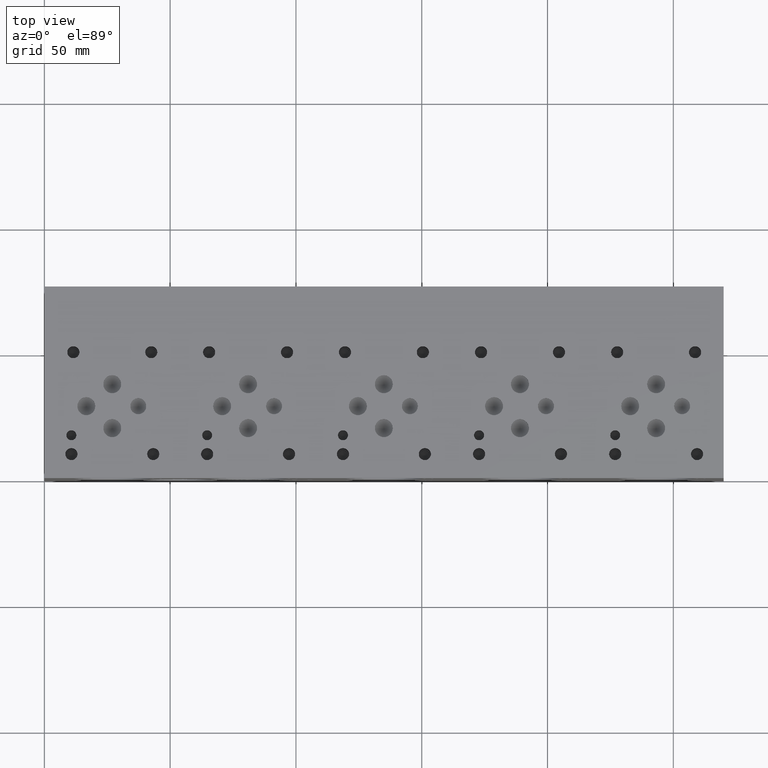
[diagram: clean part render]
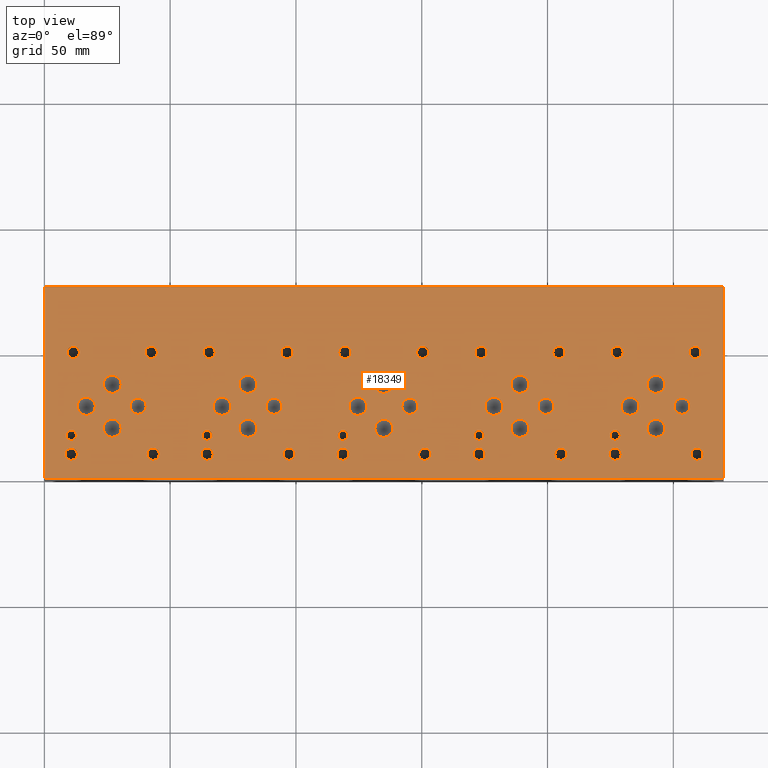
[diagram: same view with one face highlighted and labeled with its STEP entity id]
A machine part, top view. The second image highlights one B-rep face of the part: STEP entity #18349.
In plain terms, the highlighted planar face has unit normal (0, 0, 1).
Its self-contained STEP definition (entity closure, byte-faithful):
#623=CIRCLE('',#19307,1.9812);
#624=CIRCLE('',#19308,1.9812);
#627=CIRCLE('',#19313,1.9812);
#628=CIRCLE('',#19314,1.9812);
#631=CIRCLE('',#19319,1.9812);
#632=CIRCLE('',#19320,1.9812);
#635=CIRCLE('',#19325,1.9812);
#636=CIRCLE('',#19326,1.9812);
#639=CIRCLE('',#19331,3.175);
#640=CIRCLE('',#19332,3.175);
#643=CIRCLE('',#19337,3.175);
#644=CIRCLE('',#19338,3.175);
#647=CIRCLE('',#19343,3.175);
#648=CIRCLE('',#19344,3.175);
#651=CIRCLE('',#19349,3.175);
#652=CIRCLE('',#19350,3.175);
#655=CIRCLE('',#19355,3.175);
#656=CIRCLE('',#19356,3.175);
#659=CIRCLE('',#19361,3.5687);
#660=CIRCLE('',#19362,3.5687);
#663=CIRCLE('',#19367,3.5687);
#664=CIRCLE('',#19368,3.5687);
#667=CIRCLE('',#19373,3.5687);
#668=CIRCLE('',#19374,3.5687);
#671=CIRCLE('',#19379,3.5687);
#672=CIRCLE('',#19380,3.5687);
#675=CIRCLE('',#19385,3.5687);
#676=CIRCLE('',#19386,3.5687);
#679=CIRCLE('',#19391,3.5687);
#680=CIRCLE('',#19392,3.5687);
#683=CIRCLE('',#19397,3.5687);
#684=CIRCLE('',#19398,3.5687);
#687=CIRCLE('',#19403,3.5687);
#688=CIRCLE('',#19404,3.5687);
#691=CIRCLE('',#19409,3.5687);
#692=CIRCLE('',#19410,3.5687);
#695=CIRCLE('',#19415,3.5687);
#696=CIRCLE('',#19416,3.5687);
#699=CIRCLE('',#19421,3.5687);
#700=CIRCLE('',#19422,3.5687);
#703=CIRCLE('',#19427,3.5687);
#704=CIRCLE('',#19428,3.5687);
#707=CIRCLE('',#19433,3.5687);
#708=CIRCLE('',#19434,3.5687);
#711=CIRCLE('',#19439,3.5687);
#712=CIRCLE('',#19440,3.5687);
#715=CIRCLE('',#19445,3.5687);
#716=CIRCLE('',#19446,3.5687);
#719=CIRCLE('',#19451,1.9812);
#720=CIRCLE('',#19452,1.9812);
#726=CIRCLE('',#19461,2.413);
#727=CIRCLE('',#19462,2.413);
#733=CIRCLE('',#19472,2.413);
#734=CIRCLE('',#19473,2.413);
#740=CIRCLE('',#19483,2.413);
#741=CIRCLE('',#19484,2.413);
#747=CIRCLE('',#19494,2.413);
#748=CIRCLE('',#19495,2.413);
#754=CIRCLE('',#19505,2.413);
#755=CIRCLE('',#19506,2.413);
#761=CIRCLE('',#19516,2.413);
#762=CIRCLE('',#19517,2.413);
#768=CIRCLE('',#19527,2.413);
#769=CIRCLE('',#19528,2.413);
#775=CIRCLE('',#19538,2.413);
#776=CIRCLE('',#19539,2.413);
#782=CIRCLE('',#19549,2.413);
#783=CIRCLE('',#19550,2.413);
#789=CIRCLE('',#19560,2.413);
#790=CIRCLE('',#19561,2.413);
#796=CIRCLE('',#19571,2.413);
#797=CIRCLE('',#19572,2.413);
#803=CIRCLE('',#19582,2.413);
#804=CIRCLE('',#19583,2.413);
#810=CIRCLE('',#19593,2.413);
#811=CIRCLE('',#19594,2.413);
#817=CIRCLE('',#19604,2.413);
#818=CIRCLE('',#19605,2.413);
#824=CIRCLE('',#19615,2.413);
#825=CIRCLE('',#19616,2.413);
#831=CIRCLE('',#19626,2.413);
#832=CIRCLE('',#19627,2.413);
#838=CIRCLE('',#19637,2.413);
#839=CIRCLE('',#19638,2.413);
#845=CIRCLE('',#19648,2.413);
#846=CIRCLE('',#19649,2.413);
#852=CIRCLE('',#19659,2.413);
#853=CIRCLE('',#19660,2.413);
#859=CIRCLE('',#19670,2.413);
#860=CIRCLE('',#19671,2.413);
#999=FACE_BOUND('',#3762,.T.);
#1000=FACE_BOUND('',#3763,.T.);
#1001=FACE_BOUND('',#3764,.T.);
#1002=FACE_BOUND('',#3765,.T.);
#1003=FACE_BOUND('',#3766,.T.);
#1004=FACE_BOUND('',#3767,.T.);
#1005=FACE_BOUND('',#3768,.T.);
#1006=FACE_BOUND('',#3769,.T.);
#1007=FACE_BOUND('',#3770,.T.);
#1008=FACE_BOUND('',#3771,.T.);
#1009=FACE_BOUND('',#3772,.T.);
#1010=FACE_BOUND('',#3773,.T.);
#1011=FACE_BOUND('',#3774,.T.);
#1012=FACE_BOUND('',#3775,.T.);
#1013=FACE_BOUND('',#3776,.T.);
#1014=FACE_BOUND('',#3777,.T.);
#1015=FACE_BOUND('',#3778,.T.);
#1016=FACE_BOUND('',#3779,.T.);
#1017=FACE_BOUND('',#3780,.T.);
#1018=FACE_BOUND('',#3781,.T.);
#1019=FACE_BOUND('',#3782,.T.);
#1020=FACE_BOUND('',#3783,.T.);
#1021=FACE_BOUND('',#3784,.T.);
#1022=FACE_BOUND('',#3785,.T.);
#1023=FACE_BOUND('',#3786,.T.);
#1024=FACE_BOUND('',#3787,.T.);
#1025=FACE_BOUND('',#3788,.T.);
#1026=FACE_BOUND('',#3789,.T.);
#1027=FACE_BOUND('',#3790,.T.);
#1028=FACE_BOUND('',#3791,.T.);
#1029=FACE_BOUND('',#3792,.T.);
#1030=FACE_BOUND('',#3793,.T.);
#1031=FACE_BOUND('',#3794,.T.);
#1032=FACE_BOUND('',#3795,.T.);
#1033=FACE_BOUND('',#3796,.T.);
#1034=FACE_BOUND('',#3797,.T.);
#1035=FACE_BOUND('',#3798,.T.);
#1036=FACE_BOUND('',#3799,.T.);
#1037=FACE_BOUND('',#3800,.T.);
#1038=FACE_BOUND('',#3801,.T.);
#1039=FACE_BOUND('',#3802,.T.);
#1040=FACE_BOUND('',#3803,.T.);
#1041=FACE_BOUND('',#3804,.T.);
#1042=FACE_BOUND('',#3805,.T.);
#1043=FACE_BOUND('',#3806,.T.);
#2667=FACE_OUTER_BOUND('',#3761,.T.);
#3761=EDGE_LOOP('',(#16227,#16228,#16229,#16230));
#3762=EDGE_LOOP('',(#16231,#16232));
#3763=EDGE_LOOP('',(#16233,#16234));
#3764=EDGE_LOOP('',(#16235,#16236));
#3765=EDGE_LOOP('',(#16237,#16238));
#3766=EDGE_LOOP('',(#16239,#16240));
#3767=EDGE_LOOP('',(#16241,#16242));
#3768=EDGE_LOOP('',(#16243,#16244));
#3769=EDGE_LOOP('',(#16245,#16246));
#3770=EDGE_LOOP('',(#16247,#16248));
#3771=EDGE_LOOP('',(#16249,#16250));
#3772=EDGE_LOOP('',(#16251,#16252));
#3773=EDGE_LOOP('',(#16253,#16254));
#3774=EDGE_LOOP('',(#16255,#16256));
#3775=EDGE_LOOP('',(#16257,#16258));
#3776=EDGE_LOOP('',(#16259,#16260));
#3777=EDGE_LOOP('',(#16261,#16262));
#3778=EDGE_LOOP('',(#16263,#16264));
#3779=EDGE_LOOP('',(#16265,#16266));
#3780=EDGE_LOOP('',(#16267,#16268));
#3781=EDGE_LOOP('',(#16269,#16270));
#3782=EDGE_LOOP('',(#16271,#16272));
#3783=EDGE_LOOP('',(#16273,#16274));
#3784=EDGE_LOOP('',(#16275,#16276));
#3785=EDGE_LOOP('',(#16277,#16278));
#3786=EDGE_LOOP('',(#16279,#16280));
#3787=EDGE_LOOP('',(#16281,#16282));
#3788=EDGE_LOOP('',(#16283,#16284));
#3789=EDGE_LOOP('',(#16285,#16286));
#3790=EDGE_LOOP('',(#16287,#16288));
#3791=EDGE_LOOP('',(#16289,#16290));
#3792=EDGE_LOOP('',(#16291,#16292));
#3793=EDGE_LOOP('',(#16293,#16294));
#3794=EDGE_LOOP('',(#16295,#16296));
#3795=EDGE_LOOP('',(#16297,#16298));
#3796=EDGE_LOOP('',(#16299,#16300));
#3797=EDGE_LOOP('',(#16301,#16302));
#3798=EDGE_LOOP('',(#16303,#16304));
#3799=EDGE_LOOP('',(#16305,#16306));
#3800=EDGE_LOOP('',(#16307,#16308));
#3801=EDGE_LOOP('',(#16309,#16310));
#3802=EDGE_LOOP('',(#16311,#16312));
#3803=EDGE_LOOP('',(#16313,#16314));
#3804=EDGE_LOOP('',(#16315,#16316));
#3805=EDGE_LOOP('',(#16317,#16318));
#3806=EDGE_LOOP('',(#16319,#16320));
#3866=LINE('',#24097,#5396);
#3926=LINE('',#24372,#5456);
#4239=LINE('',#26978,#5769);
#5337=LINE('',#32033,#6867);
#5396=VECTOR('',#19777,10.);
#5456=VECTOR('',#19891,10.);
#5769=VECTOR('',#20374,10.);
#6867=VECTOR('',#23830,10.);
#6918=VERTEX_POINT('',#24094);
#6919=VERTEX_POINT('',#24096);
#6978=VERTEX_POINT('',#24369);
#6979=VERTEX_POINT('',#24371);
#8372=VERTEX_POINT('',#31273);
#8373=VERTEX_POINT('',#31274);
#8377=VERTEX_POINT('',#31286);
#8378=VERTEX_POINT('',#31287);
#8382=VERTEX_POINT('',#31299);
#8383=VERTEX_POINT('',#31300);
#8387=VERTEX_POINT('',#31312);
#8388=VERTEX_POINT('',#31313);
#8392=VERTEX_POINT('',#31325);
#8393=VERTEX_POINT('',#31326);
#8397=VERTEX_POINT('',#31338);
#8398=VERTEX_POINT('',#31339);
#8402=VERTEX_POINT('',#31351);
#8403=VERTEX_POINT('',#31352);
#8407=VERTEX_POINT('',#31364);
#8408=VERTEX_POINT('',#31365);
#8412=VERTEX_POINT('',#31377);
#8413=VERTEX_POINT('',#31378);
#8417=VERTEX_POINT('',#31390);
#8418=VERTEX_POINT('',#31391);
#8422=VERTEX_POINT('',#31403);
#8423=VERTEX_POINT('',#31404);
#8427=VERTEX_POINT('',#31416);
#8428=VERTEX_POINT('',#31417);
#8432=VERTEX_POINT('',#31429);
#8433=VERTEX_POINT('',#31430);
#8437=VERTEX_POINT('',#31442);
#8438=VERTEX_POINT('',#31443);
#8442=VERTEX_POINT('',#31455);
#8443=VERTEX_POINT('',#31456);
#8447=VERTEX_POINT('',#31468);
#8448=VERTEX_POINT('',#31469);
#8452=VERTEX_POINT('',#31481);
#8453=VERTEX_POINT('',#31482);
#8457=VERTEX_POINT('',#31494);
#8458=VERTEX_POINT('',#31495);
#8462=VERTEX_POINT('',#31507);
#8463=VERTEX_POINT('',#31508);
#8467=VERTEX_POINT('',#31520);
#8468=VERTEX_POINT('',#31521);
#8472=VERTEX_POINT('',#31533);
#8473=VERTEX_POINT('',#31534);
#8477=VERTEX_POINT('',#31546);
#8478=VERTEX_POINT('',#31547);
#8482=VERTEX_POINT('',#31559);
#8483=VERTEX_POINT('',#31560);
#8487=VERTEX_POINT('',#31572);
#8488=VERTEX_POINT('',#31573);
#8492=VERTEX_POINT('',#31585);
#8493=VERTEX_POINT('',#31586);
#8500=VERTEX_POINT('',#31605);
#8501=VERTEX_POINT('',#31606);
#8508=VERTEX_POINT('',#31627);
#8509=VERTEX_POINT('',#31628);
#8516=VERTEX_POINT('',#31649);
#8517=VERTEX_POINT('',#31650);
#8524=VERTEX_POINT('',#31671);
#8525=VERTEX_POINT('',#31672);
#8532=VERTEX_POINT('',#31693);
#8533=VERTEX_POINT('',#31694);
#8540=VERTEX_POINT('',#31715);
#8541=VERTEX_POINT('',#31716);
#8548=VERTEX_POINT('',#31737);
#8549=VERTEX_POINT('',#31738);
#8556=VERTEX_POINT('',#31759);
#8557=VERTEX_POINT('',#31760);
#8564=VERTEX_POINT('',#31781);
#8565=VERTEX_POINT('',#31782);
#8572=VERTEX_POINT('',#31803);
#8573=VERTEX_POINT('',#31804);
#8580=VERTEX_POINT('',#31825);
#8581=VERTEX_POINT('',#31826);
#8588=VERTEX_POINT('',#31847);
#8589=VERTEX_POINT('',#31848);
#8596=VERTEX_POINT('',#31869);
#8597=VERTEX_POINT('',#31870);
#8604=VERTEX_POINT('',#31891);
#8605=VERTEX_POINT('',#31892);
#8612=VERTEX_POINT('',#31913);
#8613=VERTEX_POINT('',#31914);
#8620=VERTEX_POINT('',#31935);
#8621=VERTEX_POINT('',#31936);
#8628=VERTEX_POINT('',#31957);
#8629=VERTEX_POINT('',#31958);
#8636=VERTEX_POINT('',#31979);
#8637=VERTEX_POINT('',#31980);
#8644=VERTEX_POINT('',#32001);
#8645=VERTEX_POINT('',#32002);
#8652=VERTEX_POINT('',#32023);
#8653=VERTEX_POINT('',#32024);
#8728=EDGE_CURVE('',#6919,#6918,#3866,.T.);
#8812=EDGE_CURVE('',#6979,#6978,#3926,.T.);
#9363=EDGE_CURVE('',#6978,#6919,#4239,.T.);
#10862=EDGE_CURVE('',#8372,#8373,#623,.T.);
#10863=EDGE_CURVE('',#8373,#8372,#624,.T.);
#10868=EDGE_CURVE('',#8377,#8378,#627,.T.);
#10869=EDGE_CURVE('',#8378,#8377,#628,.T.);
#10874=EDGE_CURVE('',#8382,#8383,#631,.T.);
#10875=EDGE_CURVE('',#8383,#8382,#632,.T.);
#10880=EDGE_CURVE('',#8387,#8388,#635,.T.);
#10881=EDGE_CURVE('',#8388,#8387,#636,.T.);
#10886=EDGE_CURVE('',#8392,#8393,#639,.T.);
#10887=EDGE_CURVE('',#8393,#8392,#640,.T.);
#10892=EDGE_CURVE('',#8397,#8398,#643,.T.);
#10893=EDGE_CURVE('',#8398,#8397,#644,.T.);
#10898=EDGE_CURVE('',#8402,#8403,#647,.T.);
#10899=EDGE_CURVE('',#8403,#8402,#648,.T.);
#10904=EDGE_CURVE('',#8407,#8408,#651,.T.);
#10905=EDGE_CURVE('',#8408,#8407,#652,.T.);
#10910=EDGE_CURVE('',#8412,#8413,#655,.T.);
#10911=EDGE_CURVE('',#8413,#8412,#656,.T.);
#10916=EDGE_CURVE('',#8417,#8418,#659,.T.);
#10917=EDGE_CURVE('',#8418,#8417,#660,.T.);
#10922=EDGE_CURVE('',#8422,#8423,#663,.T.);
#10923=EDGE_CURVE('',#8423,#8422,#664,.T.);
#10928=EDGE_CURVE('',#8427,#8428,#667,.T.);
#10929=EDGE_CURVE('',#8428,#8427,#668,.T.);
#10934=EDGE_CURVE('',#8432,#8433,#671,.T.);
#10935=EDGE_CURVE('',#8433,#8432,#672,.T.);
#10940=EDGE_CURVE('',#8437,#8438,#675,.T.);
#10941=EDGE_CURVE('',#8438,#8437,#676,.T.);
#10946=EDGE_CURVE('',#8442,#8443,#679,.T.);
#10947=EDGE_CURVE('',#8443,#8442,#680,.T.);
#10952=EDGE_CURVE('',#8447,#8448,#683,.T.);
#10953=EDGE_CURVE('',#8448,#8447,#684,.T.);
#10958=EDGE_CURVE('',#8452,#8453,#687,.T.);
#10959=EDGE_CURVE('',#8453,#8452,#688,.T.);
#10964=EDGE_CURVE('',#8457,#8458,#691,.T.);
#10965=EDGE_CURVE('',#8458,#8457,#692,.T.);
#10970=EDGE_CURVE('',#8462,#8463,#695,.T.);
#10971=EDGE_CURVE('',#8463,#8462,#696,.T.);
#10976=EDGE_CURVE('',#8467,#8468,#699,.T.);
#10977=EDGE_CURVE('',#8468,#8467,#700,.T.);
#10982=EDGE_CURVE('',#8472,#8473,#703,.T.);
#10983=EDGE_CURVE('',#8473,#8472,#704,.T.);
#10988=EDGE_CURVE('',#8477,#8478,#707,.T.);
#10989=EDGE_CURVE('',#8478,#8477,#708,.T.);
#10994=EDGE_CURVE('',#8482,#8483,#711,.T.);
#10995=EDGE_CURVE('',#8483,#8482,#712,.T.);
#11000=EDGE_CURVE('',#8487,#8488,#715,.T.);
#11001=EDGE_CURVE('',#8488,#8487,#716,.T.);
#11006=EDGE_CURVE('',#8492,#8493,#719,.T.);
#11007=EDGE_CURVE('',#8493,#8492,#720,.T.);
#11015=EDGE_CURVE('',#8500,#8501,#726,.T.);
#11016=EDGE_CURVE('',#8501,#8500,#727,.T.);
#11025=EDGE_CURVE('',#8508,#8509,#733,.T.);
#11026=EDGE_CURVE('',#8509,#8508,#734,.T.);
#11035=EDGE_CURVE('',#8516,#8517,#740,.T.);
#11036=EDGE_CURVE('',#8517,#8516,#741,.T.);
#11045=EDGE_CURVE('',#8524,#8525,#747,.T.);
#11046=EDGE_CURVE('',#8525,#8524,#748,.T.);
#11055=EDGE_CURVE('',#8532,#8533,#754,.T.);
#11056=EDGE_CURVE('',#8533,#8532,#755,.T.);
#11065=EDGE_CURVE('',#8540,#8541,#761,.T.);
#11066=EDGE_CURVE('',#8541,#8540,#762,.T.);
#11075=EDGE_CURVE('',#8548,#8549,#768,.T.);
#11076=EDGE_CURVE('',#8549,#8548,#769,.T.);
#11085=EDGE_CURVE('',#8556,#8557,#775,.T.);
#11086=EDGE_CURVE('',#8557,#8556,#776,.T.);
#11095=EDGE_CURVE('',#8564,#8565,#782,.T.);
#11096=EDGE_CURVE('',#8565,#8564,#783,.T.);
#11105=EDGE_CURVE('',#8572,#8573,#789,.T.);
#11106=EDGE_CURVE('',#8573,#8572,#790,.T.);
#11115=EDGE_CURVE('',#8580,#8581,#796,.T.);
#11116=EDGE_CURVE('',#8581,#8580,#797,.T.);
#11125=EDGE_CURVE('',#8588,#8589,#803,.T.);
#11126=EDGE_CURVE('',#8589,#8588,#804,.T.);
#11135=EDGE_CURVE('',#8596,#8597,#810,.T.);
#11136=EDGE_CURVE('',#8597,#8596,#811,.T.);
#11145=EDGE_CURVE('',#8604,#8605,#817,.T.);
#11146=EDGE_CURVE('',#8605,#8604,#818,.T.);
#11155=EDGE_CURVE('',#8612,#8613,#824,.T.);
#11156=EDGE_CURVE('',#8613,#8612,#825,.T.);
#11165=EDGE_CURVE('',#8620,#8621,#831,.T.);
#11166=EDGE_CURVE('',#8621,#8620,#832,.T.);
#11175=EDGE_CURVE('',#8628,#8629,#838,.T.);
#11176=EDGE_CURVE('',#8629,#8628,#839,.T.);
#11185=EDGE_CURVE('',#8636,#8637,#845,.T.);
#11186=EDGE_CURVE('',#8637,#8636,#846,.T.);
#11195=EDGE_CURVE('',#8644,#8645,#852,.T.);
#11196=EDGE_CURVE('',#8645,#8644,#853,.T.);
#11205=EDGE_CURVE('',#8652,#8653,#859,.T.);
#11206=EDGE_CURVE('',#8653,#8652,#860,.T.);
#11210=EDGE_CURVE('',#6918,#6979,#5337,.T.);
#16227=ORIENTED_EDGE('',*,*,#9363,.T.);
#16228=ORIENTED_EDGE('',*,*,#8728,.T.);
#16229=ORIENTED_EDGE('',*,*,#11210,.T.);
#16230=ORIENTED_EDGE('',*,*,#8812,.T.);
#16231=ORIENTED_EDGE('',*,*,#10862,.T.);
#16232=ORIENTED_EDGE('',*,*,#10863,.T.);
#16233=ORIENTED_EDGE('',*,*,#10868,.T.);
#16234=ORIENTED_EDGE('',*,*,#10869,.T.);
#16235=ORIENTED_EDGE('',*,*,#10874,.T.);
#16236=ORIENTED_EDGE('',*,*,#10875,.T.);
#16237=ORIENTED_EDGE('',*,*,#10880,.T.);
#16238=ORIENTED_EDGE('',*,*,#10881,.T.);
#16239=ORIENTED_EDGE('',*,*,#10886,.T.);
#16240=ORIENTED_EDGE('',*,*,#10887,.T.);
#16241=ORIENTED_EDGE('',*,*,#10892,.T.);
#16242=ORIENTED_EDGE('',*,*,#10893,.T.);
#16243=ORIENTED_EDGE('',*,*,#10898,.T.);
#16244=ORIENTED_EDGE('',*,*,#10899,.T.);
#16245=ORIENTED_EDGE('',*,*,#10904,.T.);
#16246=ORIENTED_EDGE('',*,*,#10905,.T.);
#16247=ORIENTED_EDGE('',*,*,#10910,.T.);
#16248=ORIENTED_EDGE('',*,*,#10911,.T.);
#16249=ORIENTED_EDGE('',*,*,#10916,.T.);
#16250=ORIENTED_EDGE('',*,*,#10917,.T.);
#16251=ORIENTED_EDGE('',*,*,#10922,.T.);
#16252=ORIENTED_EDGE('',*,*,#10923,.T.);
#16253=ORIENTED_EDGE('',*,*,#10928,.T.);
#16254=ORIENTED_EDGE('',*,*,#10929,.T.);
#16255=ORIENTED_EDGE('',*,*,#10934,.T.);
#16256=ORIENTED_EDGE('',*,*,#10935,.T.);
#16257=ORIENTED_EDGE('',*,*,#10940,.T.);
#16258=ORIENTED_EDGE('',*,*,#10941,.T.);
#16259=ORIENTED_EDGE('',*,*,#10946,.T.);
#16260=ORIENTED_EDGE('',*,*,#10947,.T.);
#16261=ORIENTED_EDGE('',*,*,#10952,.T.);
#16262=ORIENTED_EDGE('',*,*,#10953,.T.);
#16263=ORIENTED_EDGE('',*,*,#10958,.T.);
#16264=ORIENTED_EDGE('',*,*,#10959,.T.);
#16265=ORIENTED_EDGE('',*,*,#10964,.T.);
#16266=ORIENTED_EDGE('',*,*,#10965,.T.);
#16267=ORIENTED_EDGE('',*,*,#10970,.T.);
#16268=ORIENTED_EDGE('',*,*,#10971,.T.);
#16269=ORIENTED_EDGE('',*,*,#10976,.T.);
#16270=ORIENTED_EDGE('',*,*,#10977,.T.);
#16271=ORIENTED_EDGE('',*,*,#10982,.T.);
#16272=ORIENTED_EDGE('',*,*,#10983,.T.);
#16273=ORIENTED_EDGE('',*,*,#10988,.T.);
#16274=ORIENTED_EDGE('',*,*,#10989,.T.);
#16275=ORIENTED_EDGE('',*,*,#10994,.T.);
#16276=ORIENTED_EDGE('',*,*,#10995,.T.);
#16277=ORIENTED_EDGE('',*,*,#11000,.T.);
#16278=ORIENTED_EDGE('',*,*,#11001,.T.);
#16279=ORIENTED_EDGE('',*,*,#11006,.T.);
#16280=ORIENTED_EDGE('',*,*,#11007,.T.);
#16281=ORIENTED_EDGE('',*,*,#11015,.T.);
#16282=ORIENTED_EDGE('',*,*,#11016,.T.);
#16283=ORIENTED_EDGE('',*,*,#11025,.T.);
#16284=ORIENTED_EDGE('',*,*,#11026,.T.);
#16285=ORIENTED_EDGE('',*,*,#11035,.T.);
#16286=ORIENTED_EDGE('',*,*,#11036,.T.);
#16287=ORIENTED_EDGE('',*,*,#11045,.T.);
#16288=ORIENTED_EDGE('',*,*,#11046,.T.);
#16289=ORIENTED_EDGE('',*,*,#11055,.T.);
#16290=ORIENTED_EDGE('',*,*,#11056,.T.);
#16291=ORIENTED_EDGE('',*,*,#11065,.T.);
#16292=ORIENTED_EDGE('',*,*,#11066,.T.);
#16293=ORIENTED_EDGE('',*,*,#11075,.T.);
#16294=ORIENTED_EDGE('',*,*,#11076,.T.);
#16295=ORIENTED_EDGE('',*,*,#11085,.T.);
#16296=ORIENTED_EDGE('',*,*,#11086,.T.);
#16297=ORIENTED_EDGE('',*,*,#11095,.T.);
#16298=ORIENTED_EDGE('',*,*,#11096,.T.);
#16299=ORIENTED_EDGE('',*,*,#11105,.T.);
#16300=ORIENTED_EDGE('',*,*,#11106,.T.);
#16301=ORIENTED_EDGE('',*,*,#11115,.T.);
#16302=ORIENTED_EDGE('',*,*,#11116,.T.);
#16303=ORIENTED_EDGE('',*,*,#11125,.T.);
#16304=ORIENTED_EDGE('',*,*,#11126,.T.);
#16305=ORIENTED_EDGE('',*,*,#11135,.T.);
#16306=ORIENTED_EDGE('',*,*,#11136,.T.);
#16307=ORIENTED_EDGE('',*,*,#11145,.T.);
#16308=ORIENTED_EDGE('',*,*,#11146,.T.);
#16309=ORIENTED_EDGE('',*,*,#11155,.T.);
#16310=ORIENTED_EDGE('',*,*,#11156,.T.);
#16311=ORIENTED_EDGE('',*,*,#11165,.T.);
#16312=ORIENTED_EDGE('',*,*,#11166,.T.);
#16313=ORIENTED_EDGE('',*,*,#11175,.T.);
#16314=ORIENTED_EDGE('',*,*,#11176,.T.);
#16315=ORIENTED_EDGE('',*,*,#11185,.T.);
#16316=ORIENTED_EDGE('',*,*,#11186,.T.);
#16317=ORIENTED_EDGE('',*,*,#11195,.T.);
#16318=ORIENTED_EDGE('',*,*,#11196,.T.);
#16319=ORIENTED_EDGE('',*,*,#11205,.T.);
#16320=ORIENTED_EDGE('',*,*,#11206,.T.);
#16790=PLANE('',#19677);
#18349=ADVANCED_FACE('',(#2667,#999,#1000,#1001,#1002,#1003,#1004,#1005,
#1006,#1007,#1008,#1009,#1010,#1011,#1012,#1013,#1014,#1015,#1016,#1017,
#1018,#1019,#1020,#1021,#1022,#1023,#1024,#1025,#1026,#1027,#1028,#1029,
#1030,#1031,#1032,#1033,#1034,#1035,#1036,#1037,#1038,#1039,#1040,#1041,
#1042,#1043),#16790,.T.);
#19307=AXIS2_PLACEMENT_3D('',#31275,#22984,#22985);
#19308=AXIS2_PLACEMENT_3D('',#31276,#22986,#22987);
#19313=AXIS2_PLACEMENT_3D('',#31288,#22998,#22999);
#19314=AXIS2_PLACEMENT_3D('',#31289,#23000,#23001);
#19319=AXIS2_PLACEMENT_3D('',#31301,#23012,#23013);
#19320=AXIS2_PLACEMENT_3D('',#31302,#23014,#23015);
#19325=AXIS2_PLACEMENT_3D('',#31314,#23026,#23027);
#19326=AXIS2_PLACEMENT_3D('',#31315,#23028,#23029);
#19331=AXIS2_PLACEMENT_3D('',#31327,#23040,#23041);
#19332=AXIS2_PLACEMENT_3D('',#31328,#23042,#23043);
#19337=AXIS2_PLACEMENT_3D('',#31340,#23054,#23055);
#19338=AXIS2_PLACEMENT_3D('',#31341,#23056,#23057);
#19343=AXIS2_PLACEMENT_3D('',#31353,#23068,#23069);
#19344=AXIS2_PLACEMENT_3D('',#31354,#23070,#23071);
#19349=AXIS2_PLACEMENT_3D('',#31366,#23082,#23083);
#19350=AXIS2_PLACEMENT_3D('',#31367,#23084,#23085);
#19355=AXIS2_PLACEMENT_3D('',#31379,#23096,#23097);
#19356=AXIS2_PLACEMENT_3D('',#31380,#23098,#23099);
#19361=AXIS2_PLACEMENT_3D('',#31392,#23110,#23111);
#19362=AXIS2_PLACEMENT_3D('',#31393,#23112,#23113);
#19367=AXIS2_PLACEMENT_3D('',#31405,#23124,#23125);
#19368=AXIS2_PLACEMENT_3D('',#31406,#23126,#23127);
#19373=AXIS2_PLACEMENT_3D('',#31418,#23138,#23139);
#19374=AXIS2_PLACEMENT_3D('',#31419,#23140,#23141);
#19379=AXIS2_PLACEMENT_3D('',#31431,#23152,#23153);
#19380=AXIS2_PLACEMENT_3D('',#31432,#23154,#23155);
#19385=AXIS2_PLACEMENT_3D('',#31444,#23166,#23167);
#19386=AXIS2_PLACEMENT_3D('',#31445,#23168,#23169);
#19391=AXIS2_PLACEMENT_3D('',#31457,#23180,#23181);
#19392=AXIS2_PLACEMENT_3D('',#31458,#23182,#23183);
#19397=AXIS2_PLACEMENT_3D('',#31470,#23194,#23195);
#19398=AXIS2_PLACEMENT_3D('',#31471,#23196,#23197);
#19403=AXIS2_PLACEMENT_3D('',#31483,#23208,#23209);
#19404=AXIS2_PLACEMENT_3D('',#31484,#23210,#23211);
#19409=AXIS2_PLACEMENT_3D('',#31496,#23222,#23223);
#19410=AXIS2_PLACEMENT_3D('',#31497,#23224,#23225);
#19415=AXIS2_PLACEMENT_3D('',#31509,#23236,#23237);
#19416=AXIS2_PLACEMENT_3D('',#31510,#23238,#23239);
#19421=AXIS2_PLACEMENT_3D('',#31522,#23250,#23251);
#19422=AXIS2_PLACEMENT_3D('',#31523,#23252,#23253);
#19427=AXIS2_PLACEMENT_3D('',#31535,#23264,#23265);
#19428=AXIS2_PLACEMENT_3D('',#31536,#23266,#23267);
#19433=AXIS2_PLACEMENT_3D('',#31548,#23278,#23279);
#19434=AXIS2_PLACEMENT_3D('',#31549,#23280,#23281);
#19439=AXIS2_PLACEMENT_3D('',#31561,#23292,#23293);
#19440=AXIS2_PLACEMENT_3D('',#31562,#23294,#23295);
#19445=AXIS2_PLACEMENT_3D('',#31574,#23306,#23307);
#19446=AXIS2_PLACEMENT_3D('',#31575,#23308,#23309);
#19451=AXIS2_PLACEMENT_3D('',#31587,#23320,#23321);
#19452=AXIS2_PLACEMENT_3D('',#31588,#23322,#23323);
#19461=AXIS2_PLACEMENT_3D('',#31607,#23342,#23343);
#19462=AXIS2_PLACEMENT_3D('',#31608,#23344,#23345);
#19472=AXIS2_PLACEMENT_3D('',#31629,#23367,#23368);
#19473=AXIS2_PLACEMENT_3D('',#31630,#23369,#23370);
#19483=AXIS2_PLACEMENT_3D('',#31651,#23392,#23393);
#19484=AXIS2_PLACEMENT_3D('',#31652,#23394,#23395);
#19494=AXIS2_PLACEMENT_3D('',#31673,#23417,#23418);
#19495=AXIS2_PLACEMENT_3D('',#31674,#23419,#23420);
#19505=AXIS2_PLACEMENT_3D('',#31695,#23442,#23443);
#19506=AXIS2_PLACEMENT_3D('',#31696,#23444,#23445);
#19516=AXIS2_PLACEMENT_3D('',#31717,#23467,#23468);
#19517=AXIS2_PLACEMENT_3D('',#31718,#23469,#23470);
#19527=AXIS2_PLACEMENT_3D('',#31739,#23492,#23493);
#19528=AXIS2_PLACEMENT_3D('',#31740,#23494,#23495);
#19538=AXIS2_PLACEMENT_3D('',#31761,#23517,#23518);
#19539=AXIS2_PLACEMENT_3D('',#31762,#23519,#23520);
#19549=AXIS2_PLACEMENT_3D('',#31783,#23542,#23543);
#19550=AXIS2_PLACEMENT_3D('',#31784,#23544,#23545);
#19560=AXIS2_PLACEMENT_3D('',#31805,#23567,#23568);
#19561=AXIS2_PLACEMENT_3D('',#31806,#23569,#23570);
#19571=AXIS2_PLACEMENT_3D('',#31827,#23592,#23593);
#19572=AXIS2_PLACEMENT_3D('',#31828,#23594,#23595);
#19582=AXIS2_PLACEMENT_3D('',#31849,#23617,#23618);
#19583=AXIS2_PLACEMENT_3D('',#31850,#23619,#23620);
#19593=AXIS2_PLACEMENT_3D('',#31871,#23642,#23643);
#19594=AXIS2_PLACEMENT_3D('',#31872,#23644,#23645);
#19604=AXIS2_PLACEMENT_3D('',#31893,#23667,#23668);
#19605=AXIS2_PLACEMENT_3D('',#31894,#23669,#23670);
#19615=AXIS2_PLACEMENT_3D('',#31915,#23692,#23693);
#19616=AXIS2_PLACEMENT_3D('',#31916,#23694,#23695);
#19626=AXIS2_PLACEMENT_3D('',#31937,#23717,#23718);
#19627=AXIS2_PLACEMENT_3D('',#31938,#23719,#23720);
#19637=AXIS2_PLACEMENT_3D('',#31959,#23742,#23743);
#19638=AXIS2_PLACEMENT_3D('',#31960,#23744,#23745);
#19648=AXIS2_PLACEMENT_3D('',#31981,#23767,#23768);
#19649=AXIS2_PLACEMENT_3D('',#31982,#23769,#23770);
#19659=AXIS2_PLACEMENT_3D('',#32003,#23792,#23793);
#19660=AXIS2_PLACEMENT_3D('',#32004,#23794,#23795);
#19670=AXIS2_PLACEMENT_3D('',#32025,#23817,#23818);
#19671=AXIS2_PLACEMENT_3D('',#32026,#23819,#23820);
#19677=AXIS2_PLACEMENT_3D('',#32036,#23835,#23836);
#19777=DIRECTION('',(0.,1.,0.));
#19891=DIRECTION('',(0.,-1.,0.));
#20374=DIRECTION('',(1.,0.,0.));
#22984=DIRECTION('center_axis',(0.,0.,-1.));
#22985=DIRECTION('ref_axis',(1.,0.,0.));
#22986=DIRECTION('center_axis',(0.,0.,-1.));
#22987=DIRECTION('ref_axis',(1.,0.,0.));
#22998=DIRECTION('center_axis',(0.,0.,-1.));
#22999=DIRECTION('ref_axis',(1.,0.,0.));
#23000=DIRECTION('center_axis',(0.,0.,-1.));
#23001=DIRECTION('ref_axis',(1.,0.,0.));
#23012=DIRECTION('center_axis',(0.,0.,-1.));
#23013=DIRECTION('ref_axis',(1.,0.,0.));
#23014=DIRECTION('center_axis',(0.,0.,-1.));
#23015=DIRECTION('ref_axis',(1.,0.,0.));
#23026=DIRECTION('center_axis',(0.,0.,-1.));
#23027=DIRECTION('ref_axis',(1.,0.,0.));
#23028=DIRECTION('center_axis',(0.,0.,-1.));
#23029=DIRECTION('ref_axis',(1.,0.,0.));
#23040=DIRECTION('center_axis',(0.,0.,-1.));
#23041=DIRECTION('ref_axis',(1.,0.,0.));
#23042=DIRECTION('center_axis',(0.,0.,-1.));
#23043=DIRECTION('ref_axis',(1.,0.,0.));
#23054=DIRECTION('center_axis',(0.,0.,-1.));
#23055=DIRECTION('ref_axis',(1.,0.,0.));
#23056=DIRECTION('center_axis',(0.,0.,-1.));
#23057=DIRECTION('ref_axis',(1.,0.,0.));
#23068=DIRECTION('center_axis',(0.,0.,-1.));
#23069=DIRECTION('ref_axis',(1.,0.,0.));
#23070=DIRECTION('center_axis',(0.,0.,-1.));
#23071=DIRECTION('ref_axis',(1.,0.,0.));
#23082=DIRECTION('center_axis',(0.,0.,-1.));
#23083=DIRECTION('ref_axis',(1.,0.,0.));
#23084=DIRECTION('center_axis',(0.,0.,-1.));
#23085=DIRECTION('ref_axis',(1.,0.,0.));
#23096=DIRECTION('center_axis',(0.,0.,-1.));
#23097=DIRECTION('ref_axis',(1.,0.,0.));
#23098=DIRECTION('center_axis',(0.,0.,-1.));
#23099=DIRECTION('ref_axis',(1.,0.,0.));
#23110=DIRECTION('center_axis',(0.,0.,-1.));
#23111=DIRECTION('ref_axis',(1.,0.,0.));
#23112=DIRECTION('center_axis',(0.,0.,-1.));
#23113=DIRECTION('ref_axis',(1.,0.,0.));
#23124=DIRECTION('center_axis',(0.,0.,-1.));
#23125=DIRECTION('ref_axis',(1.,0.,0.));
#23126=DIRECTION('center_axis',(0.,0.,-1.));
#23127=DIRECTION('ref_axis',(1.,0.,0.));
#23138=DIRECTION('center_axis',(0.,0.,-1.));
#23139=DIRECTION('ref_axis',(1.,0.,0.));
#23140=DIRECTION('center_axis',(0.,0.,-1.));
#23141=DIRECTION('ref_axis',(1.,0.,0.));
#23152=DIRECTION('center_axis',(0.,0.,-1.));
#23153=DIRECTION('ref_axis',(1.,0.,0.));
#23154=DIRECTION('center_axis',(0.,0.,-1.));
#23155=DIRECTION('ref_axis',(1.,0.,0.));
#23166=DIRECTION('center_axis',(0.,0.,-1.));
#23167=DIRECTION('ref_axis',(1.,0.,0.));
#23168=DIRECTION('center_axis',(0.,0.,-1.));
#23169=DIRECTION('ref_axis',(1.,0.,0.));
#23180=DIRECTION('center_axis',(0.,0.,-1.));
#23181=DIRECTION('ref_axis',(1.,0.,0.));
#23182=DIRECTION('center_axis',(0.,0.,-1.));
#23183=DIRECTION('ref_axis',(1.,0.,0.));
#23194=DIRECTION('center_axis',(0.,0.,-1.));
#23195=DIRECTION('ref_axis',(1.,0.,0.));
#23196=DIRECTION('center_axis',(0.,0.,-1.));
#23197=DIRECTION('ref_axis',(1.,0.,0.));
#23208=DIRECTION('center_axis',(0.,0.,-1.));
#23209=DIRECTION('ref_axis',(1.,0.,0.));
#23210=DIRECTION('center_axis',(0.,0.,-1.));
#23211=DIRECTION('ref_axis',(1.,0.,0.));
#23222=DIRECTION('center_axis',(0.,0.,-1.));
#23223=DIRECTION('ref_axis',(1.,0.,0.));
#23224=DIRECTION('center_axis',(0.,0.,-1.));
#23225=DIRECTION('ref_axis',(1.,0.,0.));
#23236=DIRECTION('center_axis',(0.,0.,-1.));
#23237=DIRECTION('ref_axis',(1.,0.,0.));
#23238=DIRECTION('center_axis',(0.,0.,-1.));
#23239=DIRECTION('ref_axis',(1.,0.,0.));
#23250=DIRECTION('center_axis',(0.,0.,-1.));
#23251=DIRECTION('ref_axis',(1.,0.,0.));
#23252=DIRECTION('center_axis',(0.,0.,-1.));
#23253=DIRECTION('ref_axis',(1.,0.,0.));
#23264=DIRECTION('center_axis',(0.,0.,-1.));
#23265=DIRECTION('ref_axis',(1.,0.,0.));
#23266=DIRECTION('center_axis',(0.,0.,-1.));
#23267=DIRECTION('ref_axis',(1.,0.,0.));
#23278=DIRECTION('center_axis',(0.,0.,-1.));
#23279=DIRECTION('ref_axis',(1.,0.,0.));
#23280=DIRECTION('center_axis',(0.,0.,-1.));
#23281=DIRECTION('ref_axis',(1.,0.,0.));
#23292=DIRECTION('center_axis',(0.,0.,-1.));
#23293=DIRECTION('ref_axis',(1.,0.,0.));
#23294=DIRECTION('center_axis',(0.,0.,-1.));
#23295=DIRECTION('ref_axis',(1.,0.,0.));
#23306=DIRECTION('center_axis',(0.,0.,-1.));
#23307=DIRECTION('ref_axis',(1.,0.,0.));
#23308=DIRECTION('center_axis',(0.,0.,-1.));
#23309=DIRECTION('ref_axis',(1.,0.,0.));
#23320=DIRECTION('center_axis',(0.,0.,-1.));
#23321=DIRECTION('ref_axis',(1.,0.,0.));
#23322=DIRECTION('center_axis',(0.,0.,-1.));
#23323=DIRECTION('ref_axis',(1.,0.,0.));
#23342=DIRECTION('center_axis',(0.,0.,-1.));
#23343=DIRECTION('ref_axis',(1.,0.,0.));
#23344=DIRECTION('center_axis',(0.,0.,-1.));
#23345=DIRECTION('ref_axis',(1.,0.,0.));
#23367=DIRECTION('center_axis',(0.,0.,-1.));
#23368=DIRECTION('ref_axis',(1.,0.,0.));
#23369=DIRECTION('center_axis',(0.,0.,-1.));
#23370=DIRECTION('ref_axis',(1.,0.,0.));
#23392=DIRECTION('center_axis',(0.,0.,-1.));
#23393=DIRECTION('ref_axis',(1.,0.,0.));
#23394=DIRECTION('center_axis',(0.,0.,-1.));
#23395=DIRECTION('ref_axis',(1.,0.,0.));
#23417=DIRECTION('center_axis',(0.,0.,-1.));
#23418=DIRECTION('ref_axis',(1.,0.,0.));
#23419=DIRECTION('center_axis',(0.,0.,-1.));
#23420=DIRECTION('ref_axis',(1.,0.,0.));
#23442=DIRECTION('center_axis',(0.,0.,-1.));
#23443=DIRECTION('ref_axis',(1.,0.,0.));
#23444=DIRECTION('center_axis',(0.,0.,-1.));
#23445=DIRECTION('ref_axis',(1.,0.,0.));
#23467=DIRECTION('center_axis',(0.,0.,-1.));
#23468=DIRECTION('ref_axis',(1.,0.,0.));
#23469=DIRECTION('center_axis',(0.,0.,-1.));
#23470=DIRECTION('ref_axis',(1.,0.,0.));
#23492=DIRECTION('center_axis',(0.,0.,-1.));
#23493=DIRECTION('ref_axis',(1.,0.,0.));
#23494=DIRECTION('center_axis',(0.,0.,-1.));
#23495=DIRECTION('ref_axis',(1.,0.,0.));
#23517=DIRECTION('center_axis',(0.,0.,-1.));
#23518=DIRECTION('ref_axis',(1.,0.,0.));
#23519=DIRECTION('center_axis',(0.,0.,-1.));
#23520=DIRECTION('ref_axis',(1.,0.,0.));
#23542=DIRECTION('center_axis',(0.,0.,-1.));
#23543=DIRECTION('ref_axis',(1.,0.,0.));
#23544=DIRECTION('center_axis',(0.,0.,-1.));
#23545=DIRECTION('ref_axis',(1.,0.,0.));
#23567=DIRECTION('center_axis',(0.,0.,-1.));
#23568=DIRECTION('ref_axis',(1.,0.,0.));
#23569=DIRECTION('center_axis',(0.,0.,-1.));
#23570=DIRECTION('ref_axis',(1.,0.,0.));
#23592=DIRECTION('center_axis',(0.,0.,-1.));
#23593=DIRECTION('ref_axis',(1.,0.,0.));
#23594=DIRECTION('center_axis',(0.,0.,-1.));
#23595=DIRECTION('ref_axis',(1.,0.,0.));
#23617=DIRECTION('center_axis',(0.,0.,-1.));
#23618=DIRECTION('ref_axis',(1.,0.,0.));
#23619=DIRECTION('center_axis',(0.,0.,-1.));
#23620=DIRECTION('ref_axis',(1.,0.,0.));
#23642=DIRECTION('center_axis',(0.,0.,-1.));
#23643=DIRECTION('ref_axis',(1.,0.,0.));
#23644=DIRECTION('center_axis',(0.,0.,-1.));
#23645=DIRECTION('ref_axis',(1.,0.,0.));
#23667=DIRECTION('center_axis',(0.,0.,-1.));
#23668=DIRECTION('ref_axis',(1.,0.,0.));
#23669=DIRECTION('center_axis',(0.,0.,-1.));
#23670=DIRECTION('ref_axis',(1.,0.,0.));
#23692=DIRECTION('center_axis',(0.,0.,-1.));
#23693=DIRECTION('ref_axis',(1.,0.,0.));
#23694=DIRECTION('center_axis',(0.,0.,-1.));
#23695=DIRECTION('ref_axis',(1.,0.,0.));
#23717=DIRECTION('center_axis',(0.,0.,-1.));
#23718=DIRECTION('ref_axis',(1.,0.,0.));
#23719=DIRECTION('center_axis',(0.,0.,-1.));
#23720=DIRECTION('ref_axis',(1.,0.,0.));
#23742=DIRECTION('center_axis',(0.,0.,-1.));
#23743=DIRECTION('ref_axis',(1.,0.,0.));
#23744=DIRECTION('center_axis',(0.,0.,-1.));
#23745=DIRECTION('ref_axis',(1.,0.,0.));
#23767=DIRECTION('center_axis',(0.,0.,-1.));
#23768=DIRECTION('ref_axis',(1.,0.,0.));
#23769=DIRECTION('center_axis',(0.,0.,-1.));
#23770=DIRECTION('ref_axis',(1.,0.,0.));
#23792=DIRECTION('center_axis',(0.,0.,-1.));
#23793=DIRECTION('ref_axis',(1.,0.,0.));
#23794=DIRECTION('center_axis',(0.,0.,-1.));
#23795=DIRECTION('ref_axis',(1.,0.,0.));
#23817=DIRECTION('center_axis',(0.,0.,-1.));
#23818=DIRECTION('ref_axis',(1.,0.,0.));
#23819=DIRECTION('center_axis',(0.,0.,-1.));
#23820=DIRECTION('ref_axis',(1.,0.,0.));
#23830=DIRECTION('',(-1.,0.,0.));
#23835=DIRECTION('center_axis',(0.,0.,1.));
#23836=DIRECTION('ref_axis',(1.,0.,0.));
#24094=CARTESIAN_POINT('',(270.002,76.2,76.2));
#24096=CARTESIAN_POINT('',(270.002,0.,76.2));
#24097=CARTESIAN_POINT('',(270.002,0.,76.2));
#24369=CARTESIAN_POINT('',(0.,0.,76.2));
#24371=CARTESIAN_POINT('',(0.,76.2,76.2));
#24372=CARTESIAN_POINT('',(0.,76.2,76.2));
#26978=CARTESIAN_POINT('',(0.,0.,76.2));
#31273=CARTESIAN_POINT('',(174.752,17.018,76.2));
#31274=CARTESIAN_POINT('',(170.7896,17.018,76.2));
#31275=CARTESIAN_POINT('Origin',(172.7708,17.018,76.2));
#31276=CARTESIAN_POINT('Origin',(172.7708,17.018,76.2));
#31286=CARTESIAN_POINT('',(66.675,17.018,76.2));
#31287=CARTESIAN_POINT('',(62.7126,17.018,76.2));
#31288=CARTESIAN_POINT('Origin',(64.6938,17.018,76.2));
#31289=CARTESIAN_POINT('Origin',(64.6938,17.018,76.2));
#31299=CARTESIAN_POINT('',(120.65,17.018,76.2));
#31300=CARTESIAN_POINT('',(116.6876,17.018,76.2));
#31301=CARTESIAN_POINT('Origin',(118.6688,17.018,76.2));
#31302=CARTESIAN_POINT('Origin',(118.6688,17.018,76.2));
#31312=CARTESIAN_POINT('',(228.854,17.018,76.2));
#31313=CARTESIAN_POINT('',(224.8916,17.018,76.2));
#31314=CARTESIAN_POINT('Origin',(226.8728,17.018,76.2));
#31315=CARTESIAN_POINT('Origin',(226.8728,17.018,76.2));
#31325=CARTESIAN_POINT('',(202.5396,28.575,76.2));
#31326=CARTESIAN_POINT('',(196.1896,28.575,76.2));
#31327=CARTESIAN_POINT('Origin',(199.3646,28.575,76.2));
#31328=CARTESIAN_POINT('Origin',(199.3646,28.575,76.2));
#31338=CARTESIAN_POINT('',(94.4626,28.575,76.2));
#31339=CARTESIAN_POINT('',(88.1126,28.575,76.2));
#31340=CARTESIAN_POINT('Origin',(91.2876,28.575,76.2));
#31341=CARTESIAN_POINT('Origin',(91.2876,28.575,76.2));
#31351=CARTESIAN_POINT('',(40.4876,28.575,76.2));
#31352=CARTESIAN_POINT('',(34.1376,28.575,76.2));
#31353=CARTESIAN_POINT('Origin',(37.3126,28.575,76.2));
#31354=CARTESIAN_POINT('Origin',(37.3126,28.575,76.2));
#31364=CARTESIAN_POINT('',(148.4376,28.575,76.2));
#31365=CARTESIAN_POINT('',(142.0876,28.575,76.2));
#31366=CARTESIAN_POINT('Origin',(145.2626,28.575,76.2));
#31367=CARTESIAN_POINT('Origin',(145.2626,28.575,76.2));
#31377=CARTESIAN_POINT('',(256.6416,28.575,76.2));
#31378=CARTESIAN_POINT('',(250.2916,28.575,76.2));
#31379=CARTESIAN_POINT('Origin',(253.4666,28.575,76.2));
#31380=CARTESIAN_POINT('Origin',(253.4666,28.575,76.2));
#31390=CARTESIAN_POINT('',(246.6975,37.3126,76.2));
#31391=CARTESIAN_POINT('',(239.5601,37.3126,76.2));
#31392=CARTESIAN_POINT('Origin',(243.1288,37.3126,76.2));
#31393=CARTESIAN_POINT('Origin',(243.1288,37.3126,76.2));
#31403=CARTESIAN_POINT('',(192.5955,19.8374,76.2));
#31404=CARTESIAN_POINT('',(185.4581,19.8374,76.2));
#31405=CARTESIAN_POINT('Origin',(189.0268,19.8374,76.2));
#31406=CARTESIAN_POINT('Origin',(189.0268,19.8374,76.2));
#31416=CARTESIAN_POINT('',(182.2831,28.575,76.2));
#31417=CARTESIAN_POINT('',(175.1457,28.575,76.2));
#31418=CARTESIAN_POINT('Origin',(178.7144,28.575,76.2));
#31419=CARTESIAN_POINT('Origin',(178.7144,28.575,76.2));
#31429=CARTESIAN_POINT('',(138.4935,37.3126,76.2));
#31430=CARTESIAN_POINT('',(131.3561,37.3126,76.2));
#31431=CARTESIAN_POINT('Origin',(134.9248,37.3126,76.2));
#31432=CARTESIAN_POINT('Origin',(134.9248,37.3126,76.2));
#31442=CARTESIAN_POINT('',(84.5185,19.8374,76.2));
#31443=CARTESIAN_POINT('',(77.3811,19.8374,76.2));
#31444=CARTESIAN_POINT('Origin',(80.9498,19.8374,76.2));
#31445=CARTESIAN_POINT('Origin',(80.9498,19.8374,76.2));
#31455=CARTESIAN_POINT('',(74.2061,28.575,76.2));
#31456=CARTESIAN_POINT('',(67.0687,28.575,76.2));
#31457=CARTESIAN_POINT('Origin',(70.6374,28.575,76.2));
#31458=CARTESIAN_POINT('Origin',(70.6374,28.575,76.2));
#31468=CARTESIAN_POINT('',(30.5435,37.3126,76.2));
#31469=CARTESIAN_POINT('',(23.4061,37.3126,76.2));
#31470=CARTESIAN_POINT('Origin',(26.9748,37.3126,76.2));
#31471=CARTESIAN_POINT('Origin',(26.9748,37.3126,76.2));
#31481=CARTESIAN_POINT('',(20.2311,28.575,76.2));
#31482=CARTESIAN_POINT('',(13.0937,28.575,76.2));
#31483=CARTESIAN_POINT('Origin',(16.6624,28.575,76.2));
#31484=CARTESIAN_POINT('Origin',(16.6624,28.575,76.2));
#31494=CARTESIAN_POINT('',(30.5435,19.8374,76.2));
#31495=CARTESIAN_POINT('',(23.4061,19.8374,76.2));
#31496=CARTESIAN_POINT('Origin',(26.9748,19.8374,76.2));
#31497=CARTESIAN_POINT('Origin',(26.9748,19.8374,76.2));
#31507=CARTESIAN_POINT('',(84.5185,37.3126,76.2));
#31508=CARTESIAN_POINT('',(77.3811,37.3126,76.2));
#31509=CARTESIAN_POINT('Origin',(80.9498,37.3126,76.2));
#31510=CARTESIAN_POINT('Origin',(80.9498,37.3126,76.2));
#31520=CARTESIAN_POINT('',(128.1811,28.575,76.2));
#31521=CARTESIAN_POINT('',(121.0437,28.575,76.2));
#31522=CARTESIAN_POINT('Origin',(124.6124,28.575,76.2));
#31523=CARTESIAN_POINT('Origin',(124.6124,28.575,76.2));
#31533=CARTESIAN_POINT('',(138.4935,19.8374,76.2));
#31534=CARTESIAN_POINT('',(131.3561,19.8374,76.2));
#31535=CARTESIAN_POINT('Origin',(134.9248,19.8374,76.2));
#31536=CARTESIAN_POINT('Origin',(134.9248,19.8374,76.2));
#31546=CARTESIAN_POINT('',(192.5955,37.3126,76.2));
#31547=CARTESIAN_POINT('',(185.4581,37.3126,76.2));
#31548=CARTESIAN_POINT('Origin',(189.0268,37.3126,76.2));
#31549=CARTESIAN_POINT('Origin',(189.0268,37.3126,76.2));
#31559=CARTESIAN_POINT('',(236.3851,28.575,76.2));
#31560=CARTESIAN_POINT('',(229.2477,28.575,76.2));
#31561=CARTESIAN_POINT('Origin',(232.8164,28.575,76.2));
#31562=CARTESIAN_POINT('Origin',(232.8164,28.575,76.2));
#31572=CARTESIAN_POINT('',(246.6975,19.8374,76.2));
#31573=CARTESIAN_POINT('',(239.5601,19.8374,76.2));
#31574=CARTESIAN_POINT('Origin',(243.1288,19.8374,76.2));
#31575=CARTESIAN_POINT('Origin',(243.1288,19.8374,76.2));
#31585=CARTESIAN_POINT('',(12.7,17.018,76.2));
#31586=CARTESIAN_POINT('',(8.7376,17.018,76.2));
#31587=CARTESIAN_POINT('Origin',(10.7188,17.018,76.2));
#31588=CARTESIAN_POINT('Origin',(10.7188,17.018,76.2));
#31605=CARTESIAN_POINT('',(261.8232,9.525,76.2));
#31606=CARTESIAN_POINT('',(256.9972,9.525,76.2));
#31607=CARTESIAN_POINT('Origin',(259.4102,9.525,76.2));
#31608=CARTESIAN_POINT('Origin',(259.4102,9.525,76.2));
#31627=CARTESIAN_POINT('',(230.0732,50.0126,76.2));
#31628=CARTESIAN_POINT('',(225.2472,50.0126,76.2));
#31629=CARTESIAN_POINT('Origin',(227.6602,50.0126,76.2));
#31630=CARTESIAN_POINT('Origin',(227.6602,50.0126,76.2));
#31649=CARTESIAN_POINT('',(207.7212,9.525,76.2));
#31650=CARTESIAN_POINT('',(202.8952,9.525,76.2));
#31651=CARTESIAN_POINT('Origin',(205.3082,9.525,76.2));
#31652=CARTESIAN_POINT('Origin',(205.3082,9.525,76.2));
#31671=CARTESIAN_POINT('',(175.9712,50.0126,76.2));
#31672=CARTESIAN_POINT('',(171.1452,50.0126,76.2));
#31673=CARTESIAN_POINT('Origin',(173.5582,50.0126,76.2));
#31674=CARTESIAN_POINT('Origin',(173.5582,50.0126,76.2));
#31693=CARTESIAN_POINT('',(153.6192,9.525,76.2));
#31694=CARTESIAN_POINT('',(148.7932,9.525,76.2));
#31695=CARTESIAN_POINT('Origin',(151.2062,9.525,76.2));
#31696=CARTESIAN_POINT('Origin',(151.2062,9.525,76.2));
#31715=CARTESIAN_POINT('',(121.8692,50.0126,76.2));
#31716=CARTESIAN_POINT('',(117.0432,50.0126,76.2));
#31717=CARTESIAN_POINT('Origin',(119.4562,50.0126,76.2));
#31718=CARTESIAN_POINT('Origin',(119.4562,50.0126,76.2));
#31737=CARTESIAN_POINT('',(99.6442,9.525,76.2));
#31738=CARTESIAN_POINT('',(94.8182,9.525,76.2));
#31739=CARTESIAN_POINT('Origin',(97.2312,9.525,76.2));
#31740=CARTESIAN_POINT('Origin',(97.2312,9.525,76.2));
#31759=CARTESIAN_POINT('',(67.8942,50.0126,76.2));
#31760=CARTESIAN_POINT('',(63.0682,50.0126,76.2));
#31761=CARTESIAN_POINT('Origin',(65.4812,50.0126,76.2));
#31762=CARTESIAN_POINT('Origin',(65.4812,50.0126,76.2));
#31781=CARTESIAN_POINT('',(45.6692,9.525,76.2));
#31782=CARTESIAN_POINT('',(40.8432,9.525,76.2));
#31783=CARTESIAN_POINT('Origin',(43.2562,9.525,76.2));
#31784=CARTESIAN_POINT('Origin',(43.2562,9.525,76.2));
#31803=CARTESIAN_POINT('',(13.9192,50.0126,76.2));
#31804=CARTESIAN_POINT('',(9.0932,50.0126,76.2));
#31805=CARTESIAN_POINT('Origin',(11.5062,50.0126,76.2));
#31806=CARTESIAN_POINT('Origin',(11.5062,50.0126,76.2));
#31825=CARTESIAN_POINT('',(44.8818,50.0126,76.2));
#31826=CARTESIAN_POINT('',(40.0558,50.0126,76.2));
#31827=CARTESIAN_POINT('Origin',(42.4688,50.0126,76.2));
#31828=CARTESIAN_POINT('Origin',(42.4688,50.0126,76.2));
#31847=CARTESIAN_POINT('',(13.1318,9.525,76.2));
#31848=CARTESIAN_POINT('',(8.3058,9.525,76.2));
#31849=CARTESIAN_POINT('Origin',(10.7188,9.525,76.2));
#31850=CARTESIAN_POINT('Origin',(10.7188,9.525,76.2));
#31869=CARTESIAN_POINT('',(98.8568,50.0126,76.2));
#31870=CARTESIAN_POINT('',(94.0308,50.0126,76.2));
#31871=CARTESIAN_POINT('Origin',(96.4438,50.0126,76.2));
#31872=CARTESIAN_POINT('Origin',(96.4438,50.0126,76.2));
#31891=CARTESIAN_POINT('',(67.1068,9.525,76.2));
#31892=CARTESIAN_POINT('',(62.2808,9.525,76.2));
#31893=CARTESIAN_POINT('Origin',(64.6938,9.525,76.2));
#31894=CARTESIAN_POINT('Origin',(64.6938,9.525,76.2));
#31913=CARTESIAN_POINT('',(152.8318,50.0126,76.2));
#31914=CARTESIAN_POINT('',(148.0058,50.0126,76.2));
#31915=CARTESIAN_POINT('Origin',(150.4188,50.0126,76.2));
#31916=CARTESIAN_POINT('Origin',(150.4188,50.0126,76.2));
#31935=CARTESIAN_POINT('',(121.0818,9.525,76.2));
#31936=CARTESIAN_POINT('',(116.2558,9.525,76.2));
#31937=CARTESIAN_POINT('Origin',(118.6688,9.525,76.2));
#31938=CARTESIAN_POINT('Origin',(118.6688,9.525,76.2));
#31957=CARTESIAN_POINT('',(206.9338,50.0126,76.2));
#31958=CARTESIAN_POINT('',(202.1078,50.0126,76.2));
#31959=CARTESIAN_POINT('Origin',(204.5208,50.0126,76.2));
#31960=CARTESIAN_POINT('Origin',(204.5208,50.0126,76.2));
#31979=CARTESIAN_POINT('',(175.1838,9.525,76.2));
#31980=CARTESIAN_POINT('',(170.3578,9.525,76.2));
#31981=CARTESIAN_POINT('Origin',(172.7708,9.525,76.2));
#31982=CARTESIAN_POINT('Origin',(172.7708,9.525,76.2));
#32001=CARTESIAN_POINT('',(261.0358,50.0126,76.2));
#32002=CARTESIAN_POINT('',(256.2098,50.0126,76.2));
#32003=CARTESIAN_POINT('Origin',(258.6228,50.0126,76.2));
#32004=CARTESIAN_POINT('Origin',(258.6228,50.0126,76.2));
#32023=CARTESIAN_POINT('',(229.2858,9.525,76.2));
#32024=CARTESIAN_POINT('',(224.4598,9.525,76.2));
#32025=CARTESIAN_POINT('Origin',(226.8728,9.525,76.2));
#32026=CARTESIAN_POINT('Origin',(226.8728,9.525,76.2));
#32033=CARTESIAN_POINT('',(270.002,76.2,76.2));
#32036=CARTESIAN_POINT('Origin',(135.001,38.1,76.2));